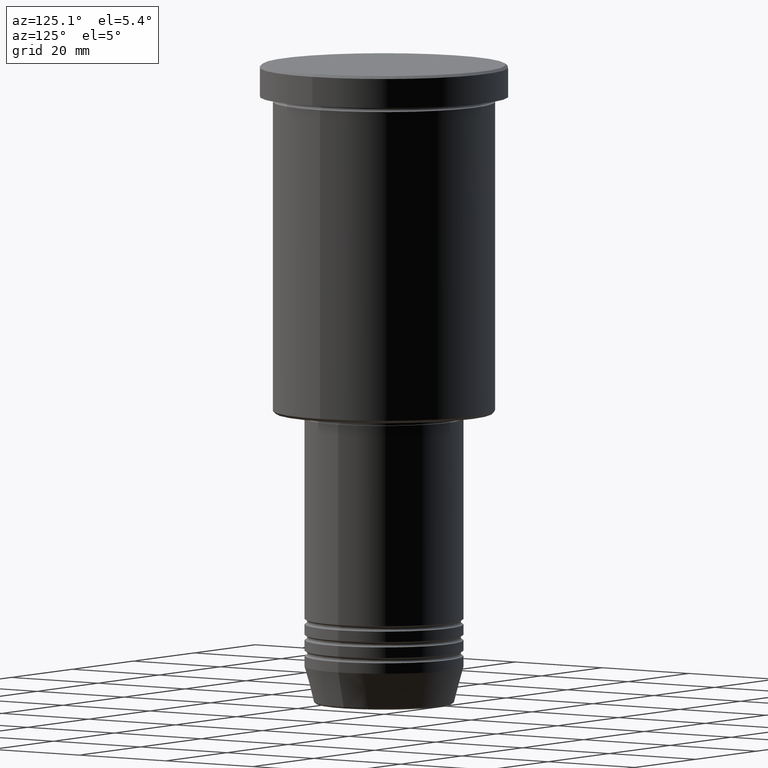
[diagram: clean part render]
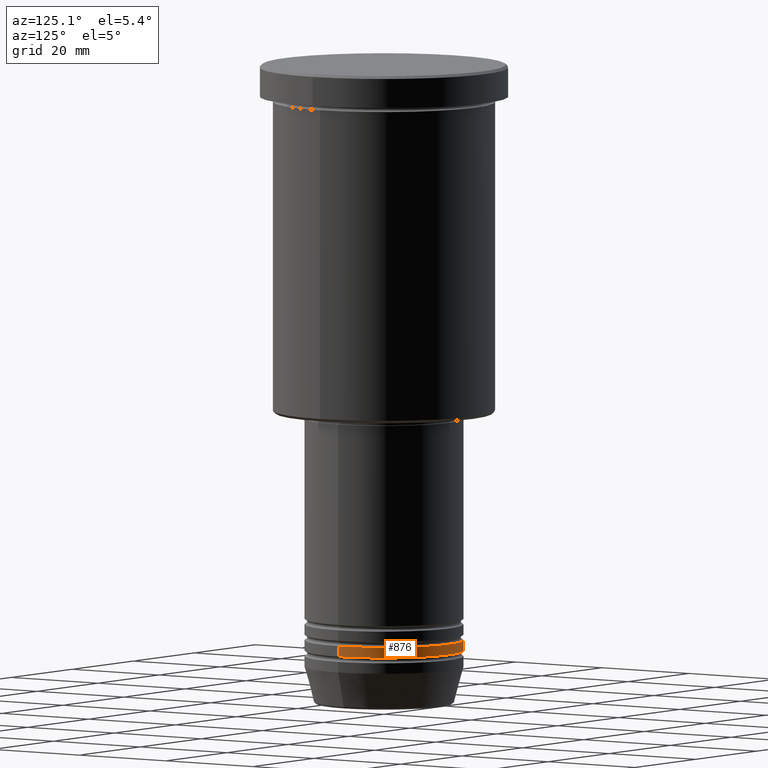
[diagram: same view with one face highlighted and labeled with its STEP entity id]
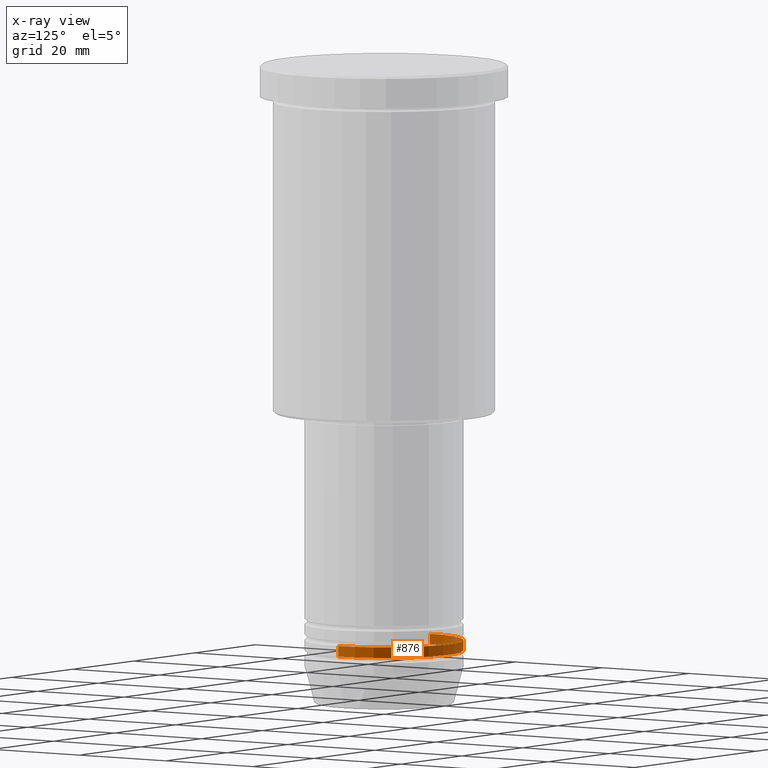
[diagram: x-ray of the same camera — body ghosted, the highlighted face saturated]
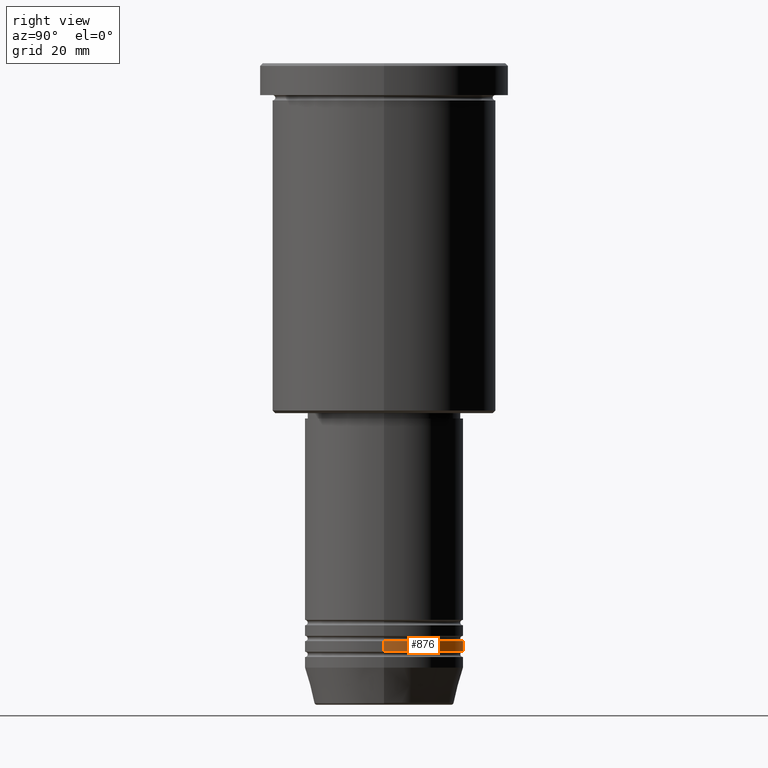
[diagram: same view with one face highlighted and labeled with its STEP entity id]
A machine part, auxiliary view. The second image highlights one B-rep face of the part: STEP entity #876.
The next image is the same camera in x-ray: the body ghosted, the highlighted face saturated — about 14% of this face is hidden behind the body in this view.
A second angle (right view) of the same face is appended — the face is thin or edge-on in the first view.
In plain terms, the highlighted cylindrical surface (partial cylindrical patch) has radius 15 mm, axis along (-0, -0, 1).
Its self-contained STEP definition (entity closure, byte-faithful):
#60 = LINE ( 'NONE', #607, #335 ) ;
#272 = VERTEX_POINT ( 'NONE', #578 ) ;
#307 = CARTESIAN_POINT ( 'NONE',  ( 0.000000000000000000, 0.000000000000000000, -109.0000000000000000 ) ) ;
#335 = VECTOR ( 'NONE', #434, 1000.000000000000000 ) ;
#353 = ORIENTED_EDGE ( 'NONE', *, *, #1148, .T. ) ;
#359 = AXIS2_PLACEMENT_3D ( 'NONE', #307, #682, #1035 ) ;
#434 = DIRECTION ( 'NONE',  ( -0.000000000000000000, -0.000000000000000000, 1.000000000000000000 ) ) ;
#447 = CARTESIAN_POINT ( 'NONE',  ( 0.000000000000000000, 0.000000000000000000, -110.9999999999999858 ) ) ;
#451 = ORIENTED_EDGE ( 'NONE', *, *, #827, .F. ) ;
#461 = VERTEX_POINT ( 'NONE', #1049 ) ;
#578 = CARTESIAN_POINT ( 'NONE',  ( 15.00000000000000000, 0.000000000000000000, -110.9999999999999858 ) ) ;
#607 = CARTESIAN_POINT ( 'NONE',  ( 15.00000000000000000, 0.000000000000000000, 0.000000000000000000 ) ) ;
#620 = DIRECTION ( 'NONE',  ( -0.000000000000000000, -0.000000000000000000, 1.000000000000000000 ) ) ;
#631 = CIRCLE ( 'NONE', #651, 15.00000000000000000 ) ;
#651 = AXIS2_PLACEMENT_3D ( 'NONE', #447, #766, #860 ) ;
#676 = EDGE_LOOP ( 'NONE', ( #795, #353, #451, #710 ) ) ;
#677 = LINE ( 'NONE', #1041, #946 ) ;
#682 = DIRECTION ( 'NONE',  ( -0.000000000000000000, -0.000000000000000000, 1.000000000000000000 ) ) ;
#710 = ORIENTED_EDGE ( 'NONE', *, *, #912, .F. ) ;
#732 = CARTESIAN_POINT ( 'NONE',  ( -15.00000000000000000, 1.836970198721029589E-15, -110.9999999999999858 ) ) ;
#766 = DIRECTION ( 'NONE',  ( -0.000000000000000000, -0.000000000000000000, 1.000000000000000000 ) ) ;
#795 = ORIENTED_EDGE ( 'NONE', *, *, #1110, .T. ) ;
#826 = VERTEX_POINT ( 'NONE', #857 ) ;
#827 = EDGE_CURVE ( 'NONE', #461, #826, #984, .T. ) ;
#857 = CARTESIAN_POINT ( 'NONE',  ( -15.00000000000000000, 1.836970198721029589E-15, -109.0000000000000000 ) ) ;
#860 = DIRECTION ( 'NONE',  ( 1.000000000000000000, 0.000000000000000000, 0.000000000000000000 ) ) ;
#876 = ADVANCED_FACE ( 'NONE', ( #883 ), #972, .T. ) ;
#883 = FACE_OUTER_BOUND ( 'NONE', #676, .T. ) ;
#912 = EDGE_CURVE ( 'NONE', #272, #461, #60, .T. ) ;
#946 = VECTOR ( 'NONE', #1134, 1000.000000000000000 ) ;
#968 = CARTESIAN_POINT ( 'NONE',  ( 0.000000000000000000, 0.000000000000000000, 0.000000000000000000 ) ) ;
#972 = CYLINDRICAL_SURFACE ( 'NONE', #1019, 15.00000000000000000 ) ;
#977 = DIRECTION ( 'NONE',  ( 1.000000000000000000, 0.000000000000000000, 0.000000000000000000 ) ) ;
#984 = CIRCLE ( 'NONE', #359, 15.00000000000000000 ) ;
#1019 = AXIS2_PLACEMENT_3D ( 'NONE', #968, #620, #977 ) ;
#1035 = DIRECTION ( 'NONE',  ( 1.000000000000000000, 0.000000000000000000, 0.000000000000000000 ) ) ;
#1041 = CARTESIAN_POINT ( 'NONE',  ( -15.00000000000000000, 1.836970198721029589E-15, 0.000000000000000000 ) ) ;
#1049 = CARTESIAN_POINT ( 'NONE',  ( 15.00000000000000000, 0.000000000000000000, -109.0000000000000000 ) ) ;
#1066 = VERTEX_POINT ( 'NONE', #732 ) ;
#1110 = EDGE_CURVE ( 'NONE', #272, #1066, #631, .T. ) ;
#1134 = DIRECTION ( 'NONE',  ( -0.000000000000000000, -0.000000000000000000, 1.000000000000000000 ) ) ;
#1148 = EDGE_CURVE ( 'NONE', #1066, #826, #677, .T. ) ;